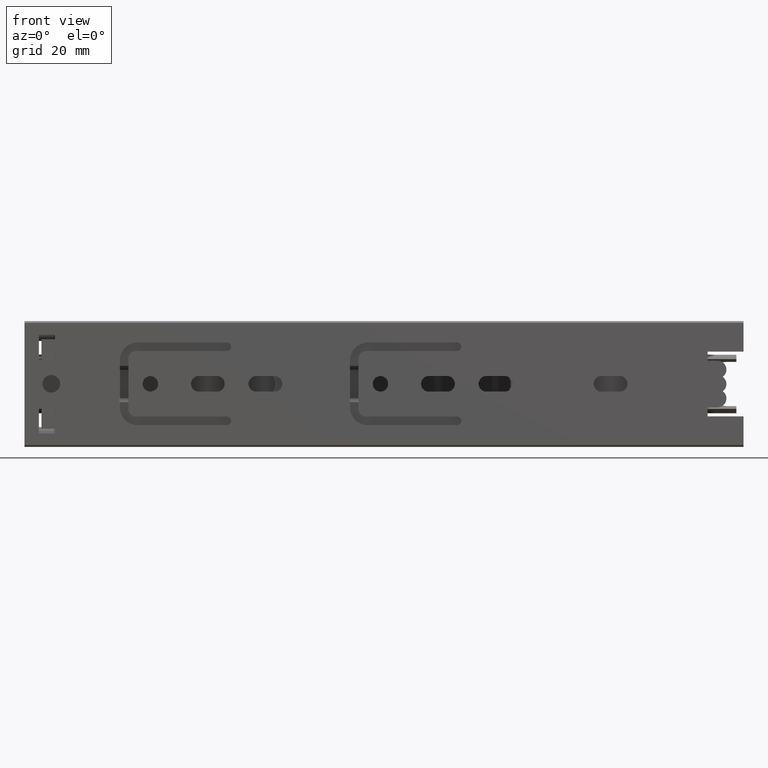
[diagram: clean part render]
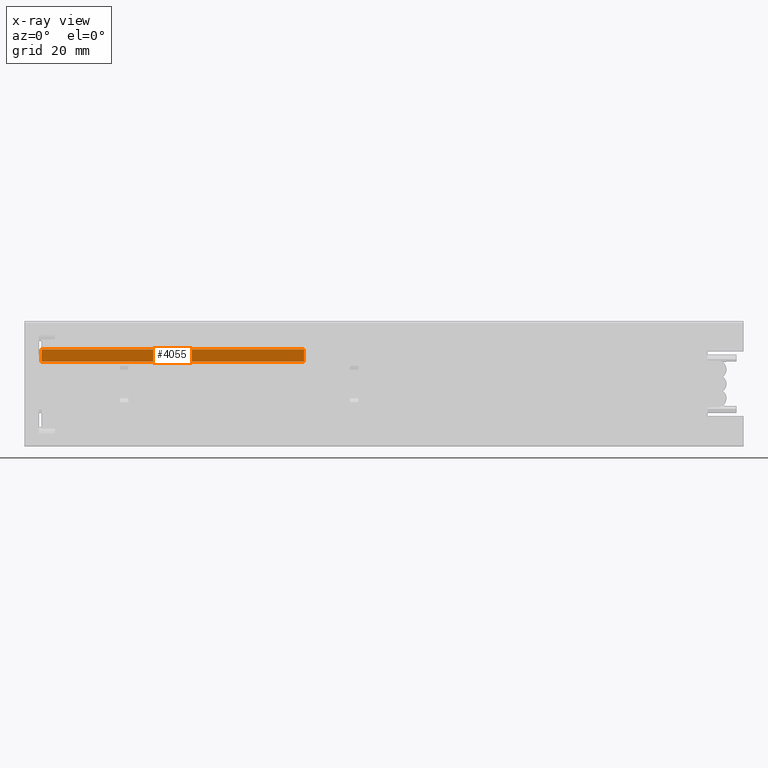
[diagram: x-ray — body ghosted, one internal face saturated and labeled with its STEP entity id]
A machine part, front view, then the same camera in x-ray: the body is ghosted and one INTERNAL B-rep face — a face not visible from any outside direction — is saturated and labeled: STEP entity #4055.
In plain terms, the highlighted planar face has unit normal (-0, -1, 0).
Its self-contained STEP definition (entity closure, byte-faithful):
#364=FACE_OUTER_BOUND('',#616,.T.);
#616=EDGE_LOOP('',(#3674,#3675,#3676,#3677));
#997=LINE('',#6635,#1423);
#1014=LINE('',#6677,#1440);
#1033=LINE('',#6712,#1459);
#1046=LINE('',#6735,#1472);
#1423=VECTOR('',#5465,73.);
#1440=VECTOR('',#5498,3.4);
#1459=VECTOR('',#5519,3.4);
#1472=VECTOR('',#5540,73.);
#1974=VERTEX_POINT('',#6632);
#1975=VERTEX_POINT('',#6634);
#1992=VERTEX_POINT('',#6675);
#2007=VERTEX_POINT('',#6711);
#2523=EDGE_CURVE('',#1974,#1975,#997,.T.);
#2544=EDGE_CURVE('',#1992,#1974,#1014,.T.);
#2563=EDGE_CURVE('',#1975,#2007,#1033,.T.);
#2576=EDGE_CURVE('',#1992,#2007,#1046,.T.);
#3674=ORIENTED_EDGE('',*,*,#2576,.T.);
#3675=ORIENTED_EDGE('',*,*,#2563,.F.);
#3676=ORIENTED_EDGE('',*,*,#2523,.F.);
#3677=ORIENTED_EDGE('',*,*,#2544,.F.);
#3849=PLANE('',#4418);
#4055=ADVANCED_FACE('',(#364),#3849,.T.);
#4418=AXIS2_PLACEMENT_3D('',#6736,#5541,#5542);
#5465=DIRECTION('',(1.,0.,0.));
#5498=DIRECTION('',(0.,4.89804275569922E-16,1.));
#5519=DIRECTION('',(0.,-4.89804275569922E-16,-1.));
#5540=DIRECTION('',(1.,0.,0.));
#5541=DIRECTION('center_axis',(0.,-1.,4.89804275569922E-16));
#5542=DIRECTION('ref_axis',(0.,-5.32907051820075E-16,-1.));
#6632=CARTESIAN_POINT('',(-36.5,4.30000000000001,9.6));
#6634=CARTESIAN_POINT('',(36.5,4.30000000000001,9.6));
#6635=CARTESIAN_POINT('',(0.,4.30000000000001,9.6));
#6675=CARTESIAN_POINT('',(-36.5,4.30000000000001,6.2));
#6677=CARTESIAN_POINT('',(-36.5,4.30000000000001,9.6));
#6711=CARTESIAN_POINT('',(36.5,4.30000000000001,6.2));
#6712=CARTESIAN_POINT('',(36.5,4.30000000000001,9.6));
#6735=CARTESIAN_POINT('',(0.,4.30000000000001,6.2));
#6736=CARTESIAN_POINT('Origin',(0.,4.30000000000001,9.6));